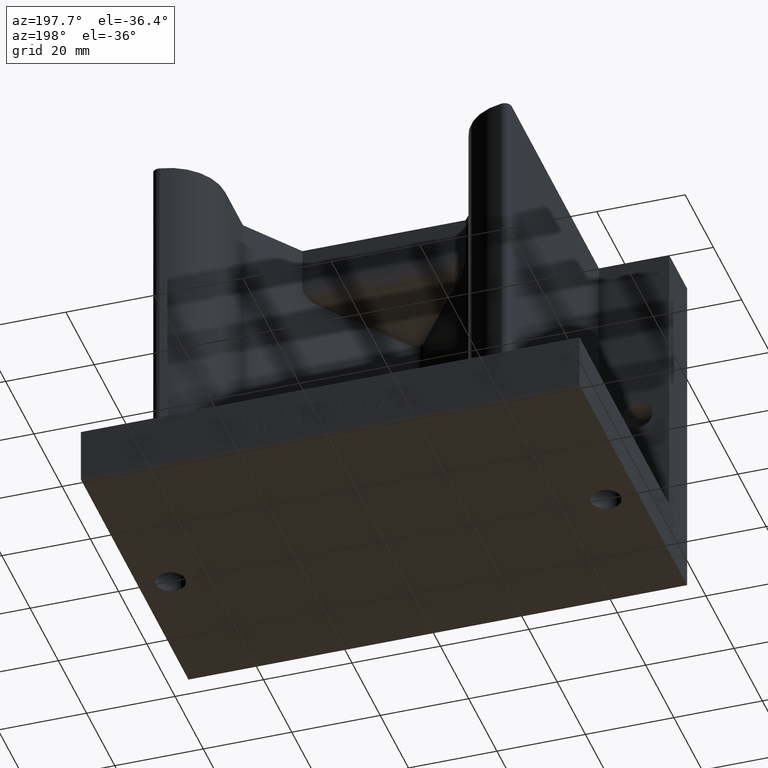
[diagram: clean part render]
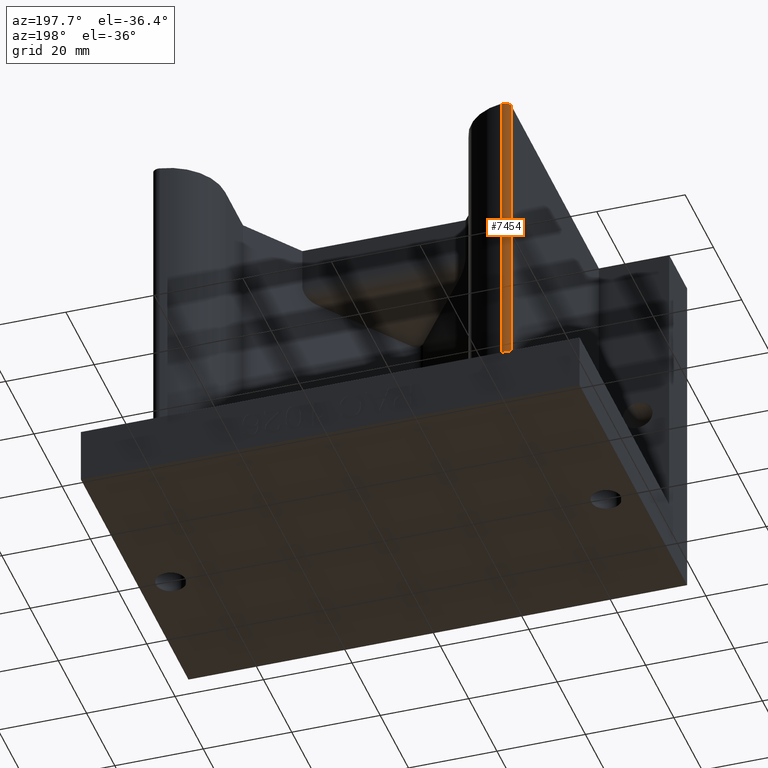
[diagram: same view with one face highlighted and labeled with its STEP entity id]
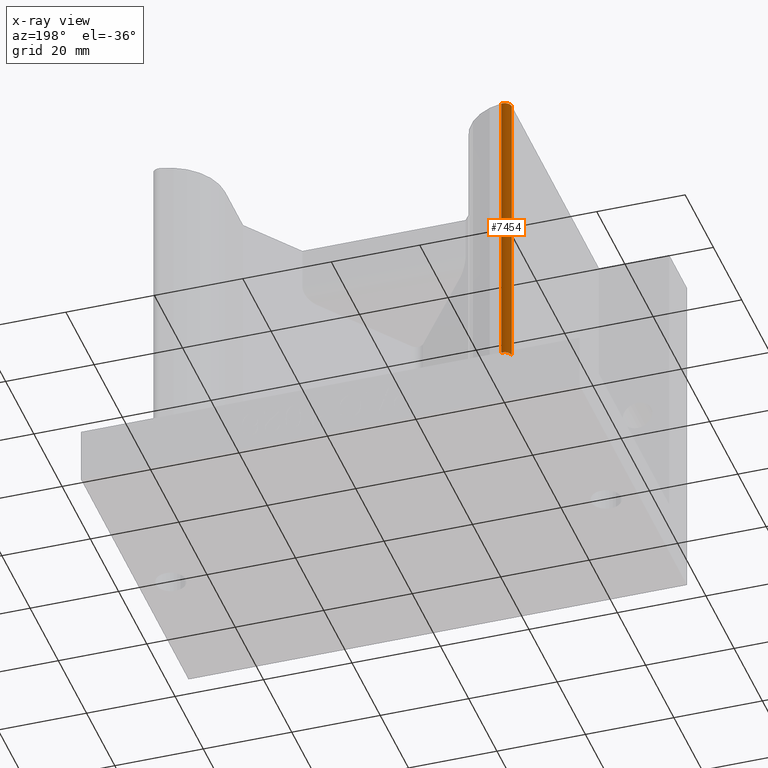
[diagram: x-ray of the same camera — body ghosted, the highlighted face saturated]
A machine part, auxiliary view. The second image highlights one B-rep face of the part: STEP entity #7454.
The next image is the same camera in x-ray: the body ghosted, the highlighted face saturated — about 0% of this face is hidden behind the body in this view.
In plain terms, the highlighted cylindrical surface (edge-blend (fillet) strip) has radius 1.5875 mm, axis along (0, 0, 1).
Its self-contained STEP definition (entity closure, byte-faithful):
#434 = DIRECTION ( 'NONE',  ( 1.000000000000000000, 0.0000000000000000000, 0.0000000000000000000 ) ) ;
#435 = DIRECTION ( 'NONE',  ( -0.0000000000000000000, -0.0000000000000000000, -1.000000000000000000 ) ) ;
#437 = CARTESIAN_POINT ( 'NONE',  ( -1.531250000000000400, 1.433012701892221000, 0.5000000000000001100 ) ) ;
#438 = DIRECTION ( 'NONE',  ( 0.0000000000000000000, 0.0000000000000000000, -1.000000000000000000 ) ) ;
#439 = CARTESIAN_POINT ( 'NONE',  ( -1.593750000000000400, 1.433012701892221000, 0.5000000000000001100 ) ) ;
#450 = DIRECTION ( 'NONE',  ( 0.0000000000000000000, 0.0000000000000000000, 1.000000000000000000 ) ) ;
#463 = CARTESIAN_POINT ( 'NONE',  ( -1.522321428571430400, 1.494871659305395200, 0.5000000000000001100 ) ) ;
#1434 = VECTOR ( 'NONE', #450, 39.37007874015748100 ) ;
#1440 = LINE ( 'NONE', #463, #1434 ) ;
#1450 = LINE ( 'NONE', #439, #1451 ) ;
#1451 = VECTOR ( 'NONE', #438, 39.37007874015748100 ) ;
#1454 = CIRCLE ( 'NONE', #4003, 0.06249999999999995100 ) ;
#1488 = CIRCLE ( 'NONE', #4013, 0.06249999999999995100 ) ;
#3111 = EDGE_CURVE ( 'NONE', #8529, #8525, #1440, .T. ) ;
#3117 = EDGE_CURVE ( 'NONE', #8553, #8539, #1450, .T. ) ;
#3118 = EDGE_CURVE ( 'NONE', #8539, #8529, #1454, .T. ) ;
#3145 = EDGE_CURVE ( 'NONE', #8525, #8553, #1488, .T. ) ;
#3915 = CARTESIAN_POINT ( 'NONE',  ( -1.522321428571430400, 1.494871659305395000, 3.125000000000000000 ) ) ;
#3917 = CARTESIAN_POINT ( 'NONE',  ( -1.522321428571430400, 1.494871659305395200, 0.5000000000000001100 ) ) ;
#3927 = CARTESIAN_POINT ( 'NONE',  ( -1.593750000000000400, 1.433012701892221000, 0.5000000000000001100 ) ) ;
#3941 = CARTESIAN_POINT ( 'NONE',  ( -1.593750000000000400, 1.433012701892221000, 3.125000000000000000 ) ) ;
#4003 = AXIS2_PLACEMENT_3D ( 'NONE', #437, #435, #434 ) ;
#4013 = AXIS2_PLACEMENT_3D ( 'NONE', #5583, #5582, #5581 ) ;
#4066 = AXIS2_PLACEMENT_3D ( 'NONE', #6399, #6398, #6403 ) ;
#5302 = ORIENTED_EDGE ( 'NONE', *, *, #3118, .F. ) ;
#5410 = ORIENTED_EDGE ( 'NONE', *, *, #3145, .F. ) ;
#5581 = DIRECTION ( 'NONE',  ( 1.000000000000000000, 0.0000000000000000000, 0.0000000000000000000 ) ) ;
#5582 = DIRECTION ( 'NONE',  ( -0.0000000000000000000, 0.0000000000000000000, 1.000000000000000000 ) ) ;
#5583 = CARTESIAN_POINT ( 'NONE',  ( -1.531250000000000400, 1.433012701892221000, 3.125000000000000000 ) ) ;
#5722 = ORIENTED_EDGE ( 'NONE', *, *, #3111, .F. ) ;
#6398 = DIRECTION ( 'NONE',  ( 0.0000000000000000000, 0.0000000000000000000, 1.000000000000000000 ) ) ;
#6399 = CARTESIAN_POINT ( 'NONE',  ( -1.531250000000000400, 1.433012701892221000, 0.5000000000000001100 ) ) ;
#6403 = DIRECTION ( 'NONE',  ( 1.000000000000000000, 0.0000000000000000000, 0.0000000000000000000 ) ) ;
#7454 = ADVANCED_FACE ( 'NONE', ( #7575 ), #7581, .T. ) ;
#7575 = FACE_OUTER_BOUND ( 'NONE', #7884, .T. ) ;
#7581 = CYLINDRICAL_SURFACE ( 'NONE', #4066, 0.06249999999999995100 ) ;
#7820 = ORIENTED_EDGE ( 'NONE', *, *, #3117, .F. ) ;
#7884 = EDGE_LOOP ( 'NONE', ( #5302, #7820, #5410, #5722 ) ) ;
#8525 = VERTEX_POINT ( 'NONE', #3915 ) ;
#8529 = VERTEX_POINT ( 'NONE', #3917 ) ;
#8539 = VERTEX_POINT ( 'NONE', #3927 ) ;
#8553 = VERTEX_POINT ( 'NONE', #3941 ) ;